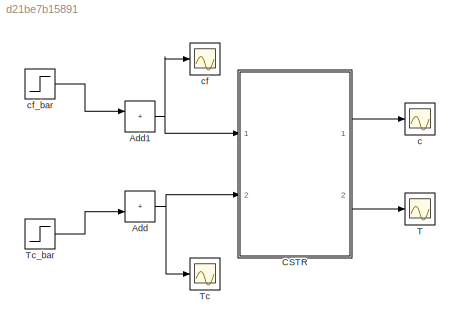
MODEL slx_d21be7b15891
KIND model
CONFIG AbsTol = 1e-7
CONFIG EnableMultiTasking = on
CONFIG FixedStep = auto
CONFIG InitFcn = datacstr
CONFIG MaxStep = auto
CONFIG MinStep = auto
CONFIG RelTol = 1e-7
CONFIG SampleTimeConstraint = Unconstrained
CONFIG SolverName = ode15s
CONFIG StartTime = 0.0
CONFIG StopTime = 20
BLOCK [Sum] Add
  IconShape = rectangular
  Ports = [2, 1]
BLOCK [Sum] Add1
  IconShape = rectangular
  Ports = [2, 1]
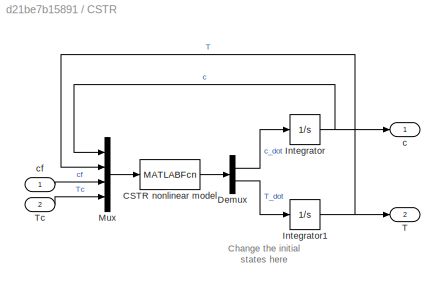
BLOCK [SubSystem] CSTR
  AttributesFormatString = %<Description>
  Ports = [2, 2]
  RequestExecContextInheritance = off
BLOCK [MATLABFcn] CSTR/CSTR nonlinear model
  MATLABFcn = cstrfun(u, q, V, ko, ER, Tf, DH, r, cp, UA)
  OutputDimensions = 2
  Ports = [1, 1]
BLOCK [Demux] CSTR/Demux
  DisplayOption = none
  Outputs = 2
  Ports = [1, 2]
BLOCK [Integrator] CSTR/Integrator
  InitialCondition = c_bar
  Ports = [1, 1]
BLOCK [Integrator] CSTR/Integrator1
  InitialCondition = T_bar
  Ports = [1, 1]
BLOCK [Mux] CSTR/Mux
  DisplayOption = bar
  Ports = [4, 1]
BLOCK [Outport] CSTR/T
  Port = 2
BLOCK [Inport] CSTR/Tc
  Port = 2
BLOCK [Outport] CSTR/c
BLOCK [Inport] CSTR/cf
  NameLocation = top
BLOCK [Scope] T
  Floating = off
  NumInputPorts = 1
  Ports = [1]
  ScopeSpecificationString = Simulink.scopes.TimeScopeBlockCfg('CurrentConfiguration', extmgr.ConfigurationSet(extmgr.Configuration('Core','General UI',true),extmgr.Configuration('Core','Source UI',true),extmgr.Configuration('Sources','WiredSimulink',true,'DataLoggingLimitDataPoints',true,'DataLoggingSaveFormat','StructureWithTime','DataLoggingDecimation','1','DataLoggingDecimateData',true,'DataLoggingVariableName','ScopeData...<+2702ch>  <repeated x3 — deduplicated; at blocks: T, Tc, cf>
BLOCK [Scope] Tc
  Floating = off
  NumInputPorts = 1
  Ports = [1]
BLOCK [Step] Tc_bar
  After = 300
  Before = 300
  SampleTime = 0
  Time = 0
BLOCK [Scope] c
  Floating = off
  NumInputPorts = 1
  Ports = [1]
  ScopeSpecificationString = Simulink.scopes.TimeScopeBlockCfg('CurrentConfiguration', extmgr.ConfigurationSet(extmgr.Configuration('Core','General UI',true),extmgr.Configuration('Core','Source UI',true),extmgr.Configuration('Sources','WiredSimulink',true,'DataLoggingLimitDataPoints',true,'DataLoggingSaveFormat','StructureWithTime','DataLoggingDecimation','1','DataLoggingDecimateData',true),extmgr.Configuration('Visuals','Tim...<+2663ch>
BLOCK [Scope] cf
  Floating = off
  NumInputPorts = 1
  Ports = [1]
BLOCK [Step] cf_bar
  Before = 1
  SampleTime = 0
  Time = 0
ANNOTATION CSTR: Change the initial states here
NET Add1:1 -> CSTR:1, cf:1
NET Add:1 -> CSTR:2, Tc:1
LINE CSTR/CSTR nonlinear model:1 -> CSTR/Demux:1
LINE CSTR/Demux:1 -> CSTR/Integrator:1
LINE CSTR/Demux:2 -> CSTR/Integrator1:1
NET CSTR/Integrator1:1 -> CSTR/Mux:2, CSTR/T:1
NET CSTR/Integrator:1 -> CSTR/Mux:1, CSTR/c:1
LINE CSTR/Mux:1 -> CSTR/CSTR nonlinear model:1
LINE CSTR/Tc:1 -> CSTR/Mux:4
LINE CSTR/cf:1 -> CSTR/Mux:3
LINE CSTR:1 -> c:1
LINE CSTR:2 -> T:1
LINE Tc_bar:1 -> Add:2
LINE cf_bar:1 -> Add1:1
note: NET lines group one-source signal fan-out (src -> all destinations, sorted); 1:1 wires keep LINE
